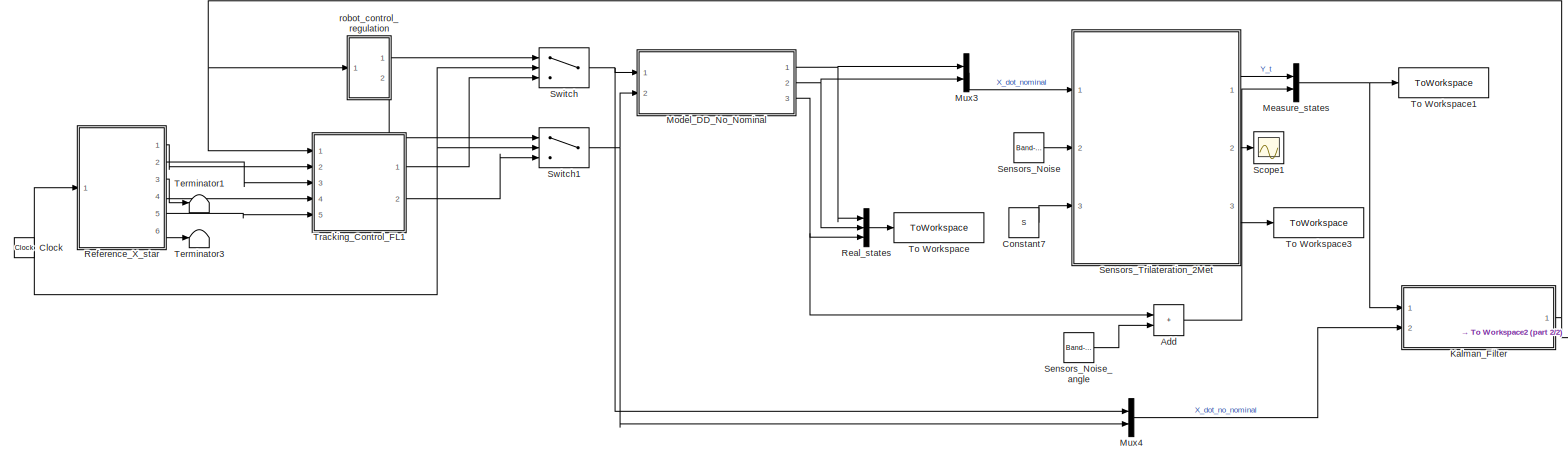
[diagram: root canvas - part 1/2, most of the canvas]
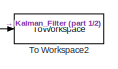
[diagram: root canvas - part 2/2, bottom right region]
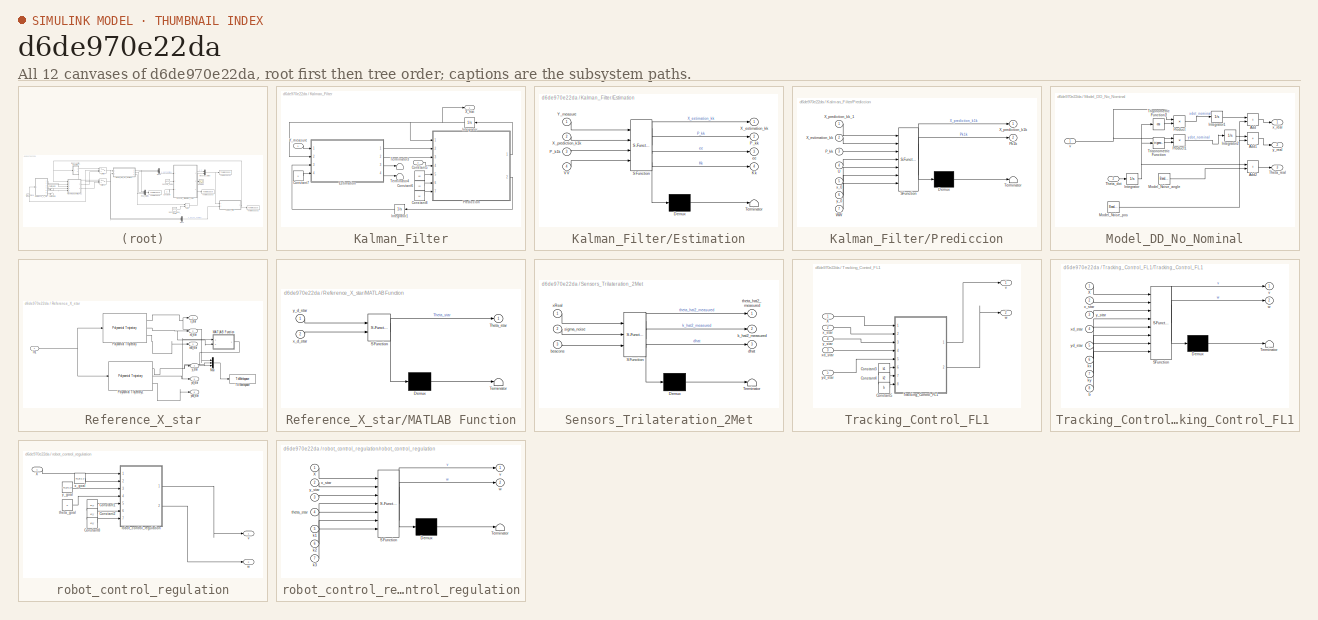
[diagram: thumbnail index - all 12 canvases of the model, root first then tree order]
MODEL slx_d6de970e22da
KIND model
CONFIG AbsTol = auto
CONFIG EnableMultiTasking = off
CONFIG FixedStep = auto
CONFIG MaxStep = auto
CONFIG MinStep = auto
CONFIG RelTol = 1e-3
CONFIG SampleTimeConstraint = Unconstrained
CONFIG SolverName = VariableStepAuto
CONFIG StartTime = 0.0
CONFIG StopTime = time_traj(N)+5
BLOCK [Sum] Add
  IconShape = rectangular
  Ports = [2, 1]
BLOCK [Clock] Clock
BLOCK [Constant] Constant7
  Value = S
BLOCK [SubSystem] Kalman_Filter
  Ports = [2, 1]
  RequestExecContextInheritance = off
BLOCK [Constant] Kalman_Filter/Constant5
  Value = x0
BLOCK [Constant] Kalman_Filter/Constant6
  Value = y0
BLOCK [Constant] Kalman_Filter/Constant7
  Value = V
BLOCK [Constant] Kalman_Filter/Constant8
  Value = W
BLOCK [SubSystem] Kalman_Filter/Estimation
  ErrorFcn = Stateflow.Translate.translate
  PermitHierarchicalResolution = ExplicitOnly
  Ports = [4, 4]
  RequestExecContextInheritance = off
  SFBlockType = MATLAB Function
  TreatAsAtomicUnit = on
BLOCK [Demux] Kalman_Filter/Estimation/ Demux 
  Outputs = 1
  Ports = [1, 1]
BLOCK [S-Function] Kalman_Filter/Estimation/ SFunction 
  EnableBusSupport = on
  FunctionName = sf_sfun
  PortCounts = [4 5]
  Ports = [4, 5]
  SFcnIsStateOwnerBlock = off
  SFunctionDeploymentMode = off
  Tag = Stateflow S-Function 6
BLOCK [Terminator] Kalman_Filter/Estimation/ Terminator 
BLOCK [Outport] Kalman_Filter/Estimation/Kk
  Port = 4
BLOCK [Inport] Kalman_Filter/Estimation/P_k1k
  Port = 3
BLOCK [Outport] Kalman_Filter/Estimation/P_kk
  Port = 2
BLOCK [Inport] Kalman_Filter/Estimation/VV
  Port = 4
BLOCK [Outport] Kalman_Filter/Estimation/X_estimation_kk
BLOCK [Inport] Kalman_Filter/Estimation/X_prediction_k1k
  Port = 2
BLOCK [Inport] Kalman_Filter/Estimation/Y_measure
BLOCK [Outport] Kalman_Filter/Estimation/ee
  Port = 3
BLOCK [Integrator] Kalman_Filter/Integrator
  InitialCondition = [x0;y0;theta0]
  Ports = [1, 1]
BLOCK [Integrator] Kalman_Filter/Integrator1
  InitialCondition = P0
  Ports = [1, 1]
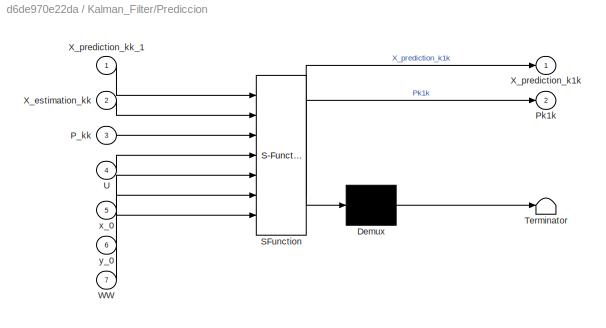
BLOCK [SubSystem] Kalman_Filter/Prediccion
  ErrorFcn = Stateflow.Translate.translate
  PermitHierarchicalResolution = ExplicitOnly
  Ports = [7, 2]
  RequestExecContextInheritance = off
  SFBlockType = MATLAB Function
  TreatAsAtomicUnit = on
BLOCK [Demux] Kalman_Filter/Prediccion/ Demux 
  Outputs = 1
  Ports = [1, 1]
BLOCK [S-Function] Kalman_Filter/Prediccion/ SFunction 
  EnableBusSupport = on
  FunctionName = sf_sfun
  PortCounts = [7 3]
  Ports = [7, 3]
  SFcnIsStateOwnerBlock = off
  SFunctionDeploymentMode = off
  Tag = Stateflow S-Function 7
BLOCK [Terminator] Kalman_Filter/Prediccion/ Terminator 
BLOCK [Inport] Kalman_Filter/Prediccion/P_kk
  Port = 3
BLOCK [Outport] Kalman_Filter/Prediccion/Pk1k
  Port = 2
BLOCK [Inport] Kalman_Filter/Prediccion/U
  Port = 4
BLOCK [Inport] Kalman_Filter/Prediccion/WW
  Port = 7
BLOCK [Inport] Kalman_Filter/Prediccion/X_estimation_kk
  Port = 2
BLOCK [Outport] Kalman_Filter/Prediccion/X_prediction_k1k
BLOCK [Inport] Kalman_Filter/Prediccion/X_prediction_kk_1
BLOCK [Inport] Kalman_Filter/Prediccion/x_0
  Port = 5
BLOCK [Inport] Kalman_Filter/Prediccion/y_0
  Port = 6
BLOCK [Terminator] Kalman_Filter/Terminator3
BLOCK [Terminator] Kalman_Filter/Terminator4
BLOCK [Inport] Kalman_Filter/U
  Port = 2
BLOCK [Outport] Kalman_Filter/X_hat
BLOCK [Inport] Kalman_Filter/Y_measure
BLOCK [Mux] Measure_states
  DisplayOption = bar
  Inputs = 2
  Ports = [2, 1]
BLOCK [SubSystem] Model_DD_No_Nominal
  Ports = [2, 3]
  RequestExecContextInheritance = off
BLOCK [Sum] Model_DD_No_Nominal/Add
  IconShape = rectangular
  Ports = [2, 1]
BLOCK [Sum] Model_DD_No_Nominal/Add1
  IconShape = rectangular
  Ports = [2, 1]
BLOCK [Sum] Model_DD_No_Nominal/Add2
  IconShape = rectangular
  Ports = [2, 1]
BLOCK [Integrator] Model_DD_No_Nominal/Integrator
  InitialCondition = theta0
  Ports = [1, 1]
BLOCK [Integrator] Model_DD_No_Nominal/Integrator1
  InitialCondition = x0
  Ports = [1, 1]
BLOCK [Integrator] Model_DD_No_Nominal/Integrator2
  InitialCondition = y0
  Ports = [1, 1]
BLOCK [Reference] Model_DD_No_Nominal/Model_Noise_angle  REF=simulink/Sources/Band-Limited
White Noise
  Ports = [0, 1]
  SourceBlock = simulink/Sources/Band-Limited\nWhite Noise
  SourceProductBaseCode = SL
  SourceType = Band-Limited White Noise.
BLOCK [Reference] Model_DD_No_Nominal/Model_Noise_pos  REF=simulink/Sources/Band-Limited
White Noise
  Ports = [0, 1]
  SourceBlock = simulink/Sources/Band-Limited\nWhite Noise
  SourceProductBaseCode = SL
  SourceType = Band-Limited White Noise.
BLOCK [Product] Model_DD_No_Nominal/Product
  Ports = [2, 1]
BLOCK [Product] Model_DD_No_Nominal/Product1
  Ports = [2, 1]
BLOCK [Inport] Model_DD_No_Nominal/Theta_dot
  Port = 2
BLOCK [Outport] Model_DD_No_Nominal/Theta_real
  Port = 3
BLOCK [Trigonometry] Model_DD_No_Nominal/Trigonometric Function
  Ports = [1, 1]
BLOCK [Trigonometry] Model_DD_No_Nominal/Trigonometric Function1
  Operator = cos
  Ports = [1, 1]
BLOCK [Inport] Model_DD_No_Nominal/v
BLOCK [Outport] Model_DD_No_Nominal/x_real
BLOCK [Outport] Model_DD_No_Nominal/y_real
  Port = 2
BLOCK [Mux] Mux3
  DisplayOption = bar
  Inputs = 2
  Ports = [2, 1]
BLOCK [Mux] Mux4
  DisplayOption = bar
  Inputs = 2
  Ports = [2, 1]
BLOCK [Mux] Real_states
  DisplayOption = bar
  Inputs = 3
  Ports = [3, 1]
BLOCK [SubSystem] Reference_X_star
  Ports = [1, 6]
  RequestExecContextInheritance = off
BLOCK [Inport] Reference_X_star/In1
BLOCK [SubSystem] Reference_X_star/MATLAB Function
  ErrorFcn = Stateflow.Translate.translate
  PermitHierarchicalResolution = ExplicitOnly
  Ports = [2, 1]
  RequestExecContextInheritance = off
  SFBlockType = MATLAB Function
  TreatAsAtomicUnit = on
BLOCK [Demux] Reference_X_star/MATLAB Function/ Demux 
  Outputs = 1
  Ports = [1, 1]
BLOCK [S-Function] Reference_X_star/MATLAB Function/ SFunction 
  EnableBusSupport = on
  FunctionName = sf_sfun
  PortCounts = [2 2]
  Ports = [2, 2]
  SFcnIsStateOwnerBlock = off
  SFunctionDeploymentMode = off
  Tag = Stateflow S-Function 3
BLOCK [Terminator] Reference_X_star/MATLAB Function/ Terminator 
BLOCK [Outport] Reference_X_star/MATLAB Function/Theta_star
BLOCK [Inport] Reference_X_star/MATLAB Function/x_d_star
  Port = 2
BLOCK [Inport] Reference_X_star/MATLAB Function/y_d_star
BLOCK [Mux] Reference_X_star/Mux
  DisplayOption = bar
  Inputs = 3
  Ports = [3, 1]
BLOCK [Reference] Reference_X_star/Polynomial Trajectory  REF=robotcorelib/Polynomial Trajectory
  Ports = [1, 3]
  SourceBlock = robotcorelib/Polynomial Trajectory
  SourceProductBaseCode = NV,RO,RR,UV
  SourceType = robotics.slcore.internal.block.PolyTrajSys
BLOCK [Reference] Reference_X_star/Polynomial Trajectory1  REF=robotcorelib/Polynomial Trajectory
  Ports = [1, 3]
  SourceBlock = robotcorelib/Polynomial Trajectory
  SourceProductBaseCode = NV,RO,RR,UV
  SourceType = robotics.slcore.internal.block.PolyTrajSys
BLOCK [ToWorkspace] Reference_X_star/To Workspace
  FixptAsFi = on
  MaxDataPoints = inf
  Ports = [1]
  SampleTime = -1
  SaveFormat = Structure
  VariableName = x_virtual
BLOCK [Outport] Reference_X_star/x_star
BLOCK [Outport] Reference_X_star/xd_star
  Port = 2
BLOCK [Outport] Reference_X_star/xdd_star
  Port = 3
BLOCK [Outport] Reference_X_star/y_star
  Port = 4
BLOCK [Outport] Reference_X_star/yd_star
  Port = 5
BLOCK [Outport] Reference_X_star/ydd_star
  Port = 6
BLOCK [Scope] Scope1
  Floating = off
  NumInputPorts = 1
  Ports = [1]
  ScopeSpecificationString = Simulink.scopes.TimeScopeBlockCfg('CurrentConfiguration', extmgr.ConfigurationSet(extmgr.Configuration('Core','General UI',true),extmgr.Configuration('Core','Source UI',true),extmgr.Configuration('Sources','WiredSimulink',true,'DataLoggingVariableName','ScopeData1'),extmgr.Configuration('Visuals','Time Domain',true,'SerializedDisplays',{struct('MinYLimReal','-940.29229','MaxYLimReal','18278.97846'...<+1423ch>
BLOCK [Reference] Sensors_Noise  REF=simulink/Sources/Band-Limited
White Noise
  Ports = [0, 1]
  SourceBlock = simulink/Sources/Band-Limited\nWhite Noise
  SourceProductBaseCode = SL
  SourceType = Band-Limited White Noise.
BLOCK [Reference] Sensors_Noise_angle  REF=simulink/Sources/Band-Limited
White Noise
  Ports = [0, 1]
  SourceBlock = simulink/Sources/Band-Limited\nWhite Noise
  SourceProductBaseCode = SL
  SourceType = Band-Limited White Noise.
BLOCK [SubSystem] Sensors_Trilateration_2Met
  ErrorFcn = Stateflow.Translate.translate
  PermitHierarchicalResolution = ExplicitOnly
  Ports = [3, 3]
  RequestExecContextInheritance = off
  SFBlockType = MATLAB Function
  TreatAsAtomicUnit = on
BLOCK [Demux] Sensors_Trilateration_2Met/ Demux 
  Outputs = 1
  Ports = [1, 1]
BLOCK [S-Function] Sensors_Trilateration_2Met/ SFunction 
  EnableBusSupport = on
  FunctionName = sf_sfun
  PortCounts = [3 4]
  Ports = [3, 4]
  SFcnIsStateOwnerBlock = off
  SFunctionDeploymentMode = off
  Tag = Stateflow S-Function 5
BLOCK [Terminator] Sensors_Trilateration_2Met/ Terminator 
BLOCK [Inport] Sensors_Trilateration_2Met/beacons
  Port = 3
BLOCK [Outport] Sensors_Trilateration_2Met/dhat
  Port = 3
BLOCK [Outport] Sensors_Trilateration_2Met/k_hat2_measured
  Port = 2
BLOCK [Inport] Sensors_Trilateration_2Met/sigma_noise
  Port = 2
BLOCK [Outport] Sensors_Trilateration_2Met/theta_hat2_measured
BLOCK [Inport] Sensors_Trilateration_2Met/xReal
BLOCK [Switch] Switch
  Criteria = u2 > Threshold
  InputSameDT = off
  SaturateOnIntegerOverflow = off
  Threshold = t_sw
BLOCK [Switch] Switch1
  Criteria = u2 > Threshold
  InputSameDT = off
  SaturateOnIntegerOverflow = off
  Threshold = t_sw
BLOCK [Terminator] Terminator1
BLOCK [Terminator] Terminator3
BLOCK [ToWorkspace] To Workspace
  FixptAsFi = on
  MaxDataPoints = inf
  Ports = [1]
  SampleTime = -1
  SaveFormat = Structure
  VariableName = X_real
BLOCK [ToWorkspace] To Workspace1
  FixptAsFi = on
  MaxDataPoints = inf
  Ports = [1]
  SampleTime = -1
  SaveFormat = Structure
  VariableName = X_measure
BLOCK [ToWorkspace] To Workspace2
  FixptAsFi = on
  MaxDataPoints = inf
  Ports = [1]
  SampleTime = -1
  SaveFormat = Structure
  VariableName = X_prediction
BLOCK [ToWorkspace] To Workspace3
  FixptAsFi = on
  MaxDataPoints = inf
  Ports = [1]
  SampleTime = -1
  SaveFormat = Structure
  VariableName = d_measure
BLOCK [SubSystem] Tracking_Control_FL1
  Ports = [5, 2]
  RequestExecContextInheritance = off
BLOCK [Constant] Tracking_Control_FL1/Constant3
  Value = k1
BLOCK [Constant] Tracking_Control_FL1/Constant4
  Value = k2
BLOCK [Constant] Tracking_Control_FL1/Constant5
  Value = b
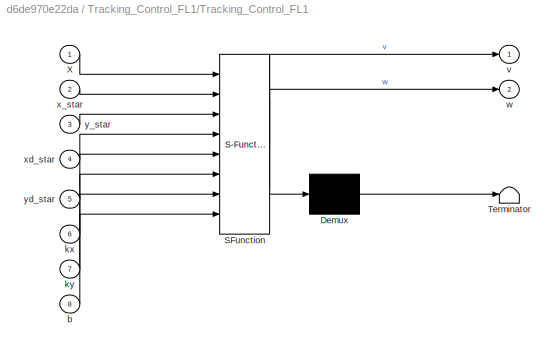
BLOCK [SubSystem] Tracking_Control_FL1/Tracking_Control_FL1
  ErrorFcn = Stateflow.Translate.translate
  PermitHierarchicalResolution = ExplicitOnly
  Ports = [8, 2]
  RequestExecContextInheritance = off
  SFBlockType = MATLAB Function
  TreatAsAtomicUnit = on
BLOCK [Demux] Tracking_Control_FL1/Tracking_Control_FL1/ Demux 
  Outputs = 1
  Ports = [1, 1]
BLOCK [S-Function] Tracking_Control_FL1/Tracking_Control_FL1/ SFunction 
  EnableBusSupport = on
  FunctionName = sf_sfun
  PortCounts = [8 3]
  Ports = [8, 3]
  SFcnIsStateOwnerBlock = off
  SFunctionDeploymentMode = off
  Tag = Stateflow S-Function 1
BLOCK [Terminator] Tracking_Control_FL1/Tracking_Control_FL1/ Terminator 
BLOCK [Inport] Tracking_Control_FL1/Tracking_Control_FL1/X
BLOCK [Inport] Tracking_Control_FL1/Tracking_Control_FL1/b
  Port = 8
BLOCK [Inport] Tracking_Control_FL1/Tracking_Control_FL1/kx
  Port = 6
BLOCK [Inport] Tracking_Control_FL1/Tracking_Control_FL1/ky
  Port = 7
BLOCK [Outport] Tracking_Control_FL1/Tracking_Control_FL1/v
BLOCK [Outport] Tracking_Control_FL1/Tracking_Control_FL1/w
  Port = 2
BLOCK [Inport] Tracking_Control_FL1/Tracking_Control_FL1/x_star
  Port = 2
BLOCK [Inport] Tracking_Control_FL1/Tracking_Control_FL1/xd_star
  Port = 4
BLOCK [Inport] Tracking_Control_FL1/Tracking_Control_FL1/y_star
  Port = 3
BLOCK [Inport] Tracking_Control_FL1/Tracking_Control_FL1/yd_star
  Port = 5
BLOCK [Inport] Tracking_Control_FL1/X
BLOCK [Outport] Tracking_Control_FL1/v
BLOCK [Outport] Tracking_Control_FL1/w
  Port = 2
BLOCK [Inport] Tracking_Control_FL1/x_star
  Port = 2
BLOCK [Inport] Tracking_Control_FL1/xd_star
  Port = 3
BLOCK [Inport] Tracking_Control_FL1/y_star
  Port = 4
BLOCK [Inport] Tracking_Control_FL1/yd_star
  Port = 5
BLOCK [SubSystem] robot_control_regulation
  Ports = [1, 2]
  RequestExecContextInheritance = off
BLOCK [Constant] robot_control_regulation/Constant1
  Value = k1_r
BLOCK [Constant] robot_control_regulation/Constant2
  Value = k2_r
BLOCK [Constant] robot_control_regulation/Constant8
  Value = k3_r
BLOCK [Inport] robot_control_regulation/X
BLOCK [SubSystem] robot_control_regulation/robot_control_regulation
  ErrorFcn = Stateflow.Translate.translate
  PermitHierarchicalResolution = ExplicitOnly
  Ports = [7, 2]
  RequestExecContextInheritance = off
  SFBlockType = MATLAB Function
  TreatAsAtomicUnit = on
BLOCK [Demux] robot_control_regulation/robot_control_regulation/ Demux 
  Outputs = 1
  Ports = [1, 1]
BLOCK [S-Function] robot_control_regulation/robot_control_regulation/ SFunction 
  EnableBusSupport = on
  FunctionName = sf_sfun
  PortCounts = [7 3]
  Ports = [7, 3]
  SFcnIsStateOwnerBlock = off
  SFunctionDeploymentMode = off
  Tag = Stateflow S-Function 2
BLOCK [Terminator] robot_control_regulation/robot_control_regulation/ Terminator 
BLOCK [Inport] robot_control_regulation/robot_control_regulation/X
BLOCK [Inport] robot_control_regulation/robot_control_regulation/k1
  Port = 5
BLOCK [Inport] robot_control_regulation/robot_control_regulation/k2
  Port = 6
BLOCK [Inport] robot_control_regulation/robot_control_regulation/k3
  Port = 7
BLOCK [Inport] robot_control_regulation/robot_control_regulation/theta_star
  Port = 4
BLOCK [Outport] robot_control_regulation/robot_control_regulation/v
BLOCK [Outport] robot_control_regulation/robot_control_regulation/w
  Port = 2
BLOCK [Inport] robot_control_regulation/robot_control_regulation/x_star
  Port = 2
BLOCK [Inport] robot_control_regulation/robot_control_regulation/y_star
  Port = 3
BLOCK [Constant] robot_control_regulation/theta_goal
  Value = 0
BLOCK [Outport] robot_control_regulation/v
BLOCK [Outport] robot_control_regulation/w
  Port = 2
BLOCK [Constant] robot_control_regulation/x_goal
  Value = x0_g(2,1)
BLOCK [Constant] robot_control_regulation/y_goal
  Value = x0_g(2,2)
LINE Add:1 -> Measure_states:2
NET Clock:1 -> Reference_X_star:1, Switch1:2, Switch:2
LINE Constant7:1 -> Sensors_Trilateration_2Met:3
LINE Kalman_Filter/Constant5:1 -> Kalman_Filter/Prediccion:5
LINE Kalman_Filter/Constant6:1 -> Kalman_Filter/Prediccion:6
LINE Kalman_Filter/Constant7:1 -> Kalman_Filter/Estimation:4
LINE Kalman_Filter/Constant8:1 -> Kalman_Filter/Prediccion:7
LINE Kalman_Filter/Estimation:1 -> Kalman_Filter/Prediccion:2
LINE Kalman_Filter/Estimation:2 -> Kalman_Filter/Prediccion:3
LINE Kalman_Filter/Estimation:3 -> Kalman_Filter/Terminator3:1
LINE Kalman_Filter/Estimation:4 -> Kalman_Filter/Terminator4:1
LINE Kalman_Filter/Integrator1:1 -> Kalman_Filter/Estimation:3
NET Kalman_Filter/Integrator:1 -> Kalman_Filter/Estimation:2, Kalman_Filter/Prediccion:1, Kalman_Filter/X_hat:1
LINE Kalman_Filter/Prediccion:1 -> Kalman_Filter/Integrator:1
LINE Kalman_Filter/Prediccion:2 -> Kalman_Filter/Integrator1:1
LINE Kalman_Filter/U:1 -> Kalman_Filter/Prediccion:4
LINE Kalman_Filter/Y_measure:1 -> Kalman_Filter/Estimation:1
NET Kalman_Filter:1 -> To Workspace2:1, Tracking_Control_FL1:1, robot_control_regulation:1
NET Measure_states:1 -> Kalman_Filter:1, To Workspace1:1
LINE Model_DD_No_Nominal/Add1:1 -> Model_DD_No_Nominal/y_real:1
LINE Model_DD_No_Nominal/Add2:1 -> Model_DD_No_Nominal/Theta_real:1
LINE Model_DD_No_Nominal/Add:1 -> Model_DD_No_Nominal/x_real:1
LINE Model_DD_No_Nominal/Integrator1:1 -> Model_DD_No_Nominal/Add:1
LINE Model_DD_No_Nominal/Integrator2:1 -> Model_DD_No_Nominal/Add1:1
NET Model_DD_No_Nominal/Integrator:1 -> Model_DD_No_Nominal/Add2:1, Model_DD_No_Nominal/Trigonometric Function1:1, Model_DD_No_Nominal/Trigonometric Function:1
LINE Model_DD_No_Nominal/Model_Noise_angle:1 -> Model_DD_No_Nominal/Add2:2
NET Model_DD_No_Nominal/Model_Noise_pos:1 -> Model_DD_No_Nominal/Add1:2, Model_DD_No_Nominal/Add:2
LINE Model_DD_No_Nominal/Product1:1 -> Model_DD_No_Nominal/Integrator2:1
LINE Model_DD_No_Nominal/Product:1 -> Model_DD_No_Nominal/Integrator1:1
LINE Model_DD_No_Nominal/Theta_dot:1 -> Model_DD_No_Nominal/Integrator:1
LINE Model_DD_No_Nominal/Trigonometric Function1:1 -> Model_DD_No_Nominal/Product:2
LINE Model_DD_No_Nominal/Trigonometric Function:1 -> Model_DD_No_Nominal/Product1:2
NET Model_DD_No_Nominal/v:1 -> Model_DD_No_Nominal/Product1:1, Model_DD_No_Nominal/Product:1
NET Model_DD_No_Nominal:1 -> Mux3:1, Real_states:1
NET Model_DD_No_Nominal:2 -> Mux3:2, Real_states:2
NET Model_DD_No_Nominal:3 -> Add:1, Real_states:3
LINE Mux3:1 -> Sensors_Trilateration_2Met:1
LINE Mux4:1 -> Kalman_Filter:2
LINE Real_states:1 -> To Workspace:1
NET Reference_X_star/In1:1 -> Reference_X_star/Polynomial Trajectory1:1, Reference_X_star/Polynomial Trajectory:1
LINE Reference_X_star/MATLAB Function:1 -> Reference_X_star/Mux:3
LINE Reference_X_star/Mux:1 -> Reference_X_star/To Workspace:1
NET Reference_X_star/Polynomial Trajectory1:1 -> Reference_X_star/Mux:2, Reference_X_star/y_star:1
NET Reference_X_star/Polynomial Trajectory1:2 -> Reference_X_star/MATLAB Function:1, Reference_X_star/yd_star:1
LINE Reference_X_star/Polynomial Trajectory1:3 -> Reference_X_star/ydd_star:1
NET Reference_X_star/Polynomial Trajectory:1 -> Reference_X_star/Mux:1, Reference_X_star/x_star:1
NET Reference_X_star/Polynomial Trajectory:2 -> Reference_X_star/MATLAB Function:2, Reference_X_star/xd_star:1
LINE Reference_X_star/Polynomial Trajectory:3 -> Reference_X_star/xdd_star:1
LINE Reference_X_star:1 -> Tracking_Control_FL1:2
LINE Reference_X_star:2 -> Tracking_Control_FL1:3
LINE Reference_X_star:3 -> Terminator1:1
LINE Reference_X_star:4 -> Tracking_Control_FL1:4
LINE Reference_X_star:5 -> Tracking_Control_FL1:5
LINE Reference_X_star:6 -> Terminator3:1
LINE Sensors_Noise:1 -> Sensors_Trilateration_2Met:2
LINE Sensors_Noise_angle:1 -> Add:2
LINE Sensors_Trilateration_2Met:1 -> Measure_states:1
LINE Sensors_Trilateration_2Met:2 -> Scope1:1
LINE Sensors_Trilateration_2Met:3 -> To Workspace3:1
NET Switch1:1 -> Model_DD_No_Nominal:2, Mux4:2
NET Switch:1 -> Model_DD_No_Nominal:1, Mux4:1
LINE Tracking_Control_FL1/Constant3:1 -> Tracking_Control_FL1/Tracking_Control_FL1:6
LINE Tracking_Control_FL1/Constant4:1 -> Tracking_Control_FL1/Tracking_Control_FL1:7
LINE Tracking_Control_FL1/Constant5:1 -> Tracking_Control_FL1/Tracking_Control_FL1:8
LINE Tracking_Control_FL1/Tracking_Control_FL1:1 -> Tracking_Control_FL1/v:1
LINE Tracking_Control_FL1/Tracking_Control_FL1:2 -> Tracking_Control_FL1/w:1
LINE Tracking_Control_FL1/X:1 -> Tracking_Control_FL1/Tracking_Control_FL1:1
LINE Tracking_Control_FL1/x_star:1 -> Tracking_Control_FL1/Tracking_Control_FL1:2
LINE Tracking_Control_FL1/xd_star:1 -> Tracking_Control_FL1/Tracking_Control_FL1:4
LINE Tracking_Control_FL1/y_star:1 -> Tracking_Control_FL1/Tracking_Control_FL1:3
LINE Tracking_Control_FL1/yd_star:1 -> Tracking_Control_FL1/Tracking_Control_FL1:5
LINE Tracking_Control_FL1:1 -> Switch:3
LINE Tracking_Control_FL1:2 -> Switch1:3
LINE robot_control_regulation/Constant1:1 -> robot_control_regulation/robot_control_regulation:5
LINE robot_control_regulation/Constant2:1 -> robot_control_regulation/robot_control_regulation:6
LINE robot_control_regulation/Constant8:1 -> robot_control_regulation/robot_control_regulation:7
LINE robot_control_regulation/X:1 -> robot_control_regulation/robot_control_regulation:1
LINE robot_control_regulation/robot_control_regulation:1 -> robot_control_regulation/v:1
LINE robot_control_regulation/robot_control_regulation:2 -> robot_control_regulation/w:1
LINE robot_control_regulation/theta_goal:1 -> robot_control_regulation/robot_control_regulation:4
LINE robot_control_regulation/x_goal:1 -> robot_control_regulation/robot_control_regulation:2
LINE robot_control_regulation/y_goal:1 -> robot_control_regulation/robot_control_regulation:3
LINE robot_control_regulation:1 -> Switch:1
LINE robot_control_regulation:2 -> Switch1:1
note: NET lines group one-source signal fan-out (src -> all destinations, sorted); 1:1 wires keep LINE
CHART Tracking_Control_FL1/Tracking_Control_FL1 states=1 transitions=1
  STATE_LABEL 'eML_blk_kernel()'
  STATE_LABEL 'SCRIPT:\n\nfunction [v,w] = robot_control_for_No_Nominal_FL_sim(X,x_star,y_star,xd_star,yd_star,kx,ky,b)\n\n\nx=X(1);\ny=X(2);\ntheta=X(3);\n\nxB=x+b*cos(theta);\nyB=y+b*sin(theta);\n\nxstar=x_star;\nystar=y_star;\n\nxBdotstar=xd_star;\nyBdotstar=yd_star;\n\n\nTinv=[\n     cos(theta)   sin(theta);\n    -sin(theta)/b cos(theta)/b\n    ];\nux=xBdotstar+kx*(xstar-xB);\nuy=yBdotstar+ky*(ystar-yB);\n\nvw=Tinv*[ux;uy];\nv=vw(1);\n...<+81ch>'
CHART robot_control_regulation/robot_control_regulation states=1 transitions=1
  STATE_LABEL 'eML_blk_kernel()'
  STATE_LABEL 'SCRIPT:\nfunction [v,w] = robot_control_regulation(X,x_star,y_star,theta_star,k1,k2,k3)\nx=X(1);\ny=X(2);\ntheta=X(3);\n% theta_star=atan(y_star/x_star);\n\nex=x_star-x;\ney=y_star-y;\netheta=delta_angle(theta_star,theta);\n\nrho=norm([ex;ey]);\ngamma=delta_angle(atan2(ey,ex),theta);\ndelta=delta_angle(gamma,etheta);\n\nv=k1*rho*cos(gamma);\nw=k2*gamma+k1*(sin(gamma)*cos(gamma)/gamma)*(gamma+k3*delta);\n\n\nend\n'
CHART Reference_X_star/MATLAB Function states=1 transitions=1
  STATE_LABEL 'eML_blk_kernel()'
  STATE_LABEL 'SCRIPT:\nfunction Theta_star = fcn(y_d_star, x_d_star)\nTheta_star=atan(y_d_star/x_d_star);\n\n'
CHART Sensors_Trilateration_2Met states=1 transitions=1
  STATE_LABEL 'eML_blk_kernel()'
  STATE_LABEL 'SCRIPT:\nfunction [theta_hat2_measured,k_hat2_measured,dhat] = trilateration_second_method(xReal,sigma_noise,beacons)\n \nf=@(theta,beacons)(sqrt((beacons(:,1)-theta(1)).^2+(beacons(:,2)-theta(2)).^2));\nd=f(xReal,beacons);%distancia entre beacons y medida real\ndhat=d+sigma_noise;% distancia con noise de sensor\n%% tecnica 2\n[theta_hat2_measured,k_hat2_measured]=trilat2(beacons,dhat);\n\n%% Plot\n% % figu...<+336ch>'
CHART Kalman_Filter/Estimation states=1 transitions=1
  STATE_LABEL 'eML_blk_kernel()'
  STATE_LABEL "SCRIPT:\nfunction[X_estimation_kk,P_kk,ee,Kk]=Kalman_Filter(Y_measure,X_prediction_k1k,P_k1k,VV)\nCk=[1 0 0;\n    0 1 0\n    0 0 1];\n\n%% kalman gain\nKk=P_k1k*Ck'*inv(((Ck*P_k1k*Ck'+VV)));\n %% predicted output\n yhk=Ck*X_prediction_k1k;\n%% innovation\nee=Y_measure-yhk;\n%% from prediction to estimation\n X_estimation_kk=X_prediction_k1k+Kk*ee;\n P_kk=P_k1k-Kk*Ck*P_k1k;\n\n"
CHART Kalman_Filter/Prediccion states=1 transitions=1
  STATE_LABEL 'eML_blk_kernel()'
  STATE_LABEL "SCRIPT:\nfunction[X_prediction_k1k, Pk1k]=Kalman_Predictor(X_prediction_kk_1,X_estimation_kk,P_kk,U,x_0,y_0,WW)\n\ntheta=atan(X_estimation_kk(2)/X_estimation_kk(1));\nA_t=[\n    1 0 -U(1)*sin(theta);\n    0 1  U(1)*cos(theta);\n    0 0             1\n    ];\n%% from estimation to prediction\nX_prediction_k1k=[U(1)*cos(X_prediction_kk_1(3));\n    U(1)*sin(X_prediction_kk_1(3));\n    U(2)];\nPk1k=A_t.*P_kk.*A_t'...<+11ch>"
CHART  states=0 transitions=0
CHART  states=0 transitions=0
CHART  states=0 transitions=0
CHART  states=0 transitions=0
CHART  states=0 transitions=0
CHART  states=0 transitions=0
